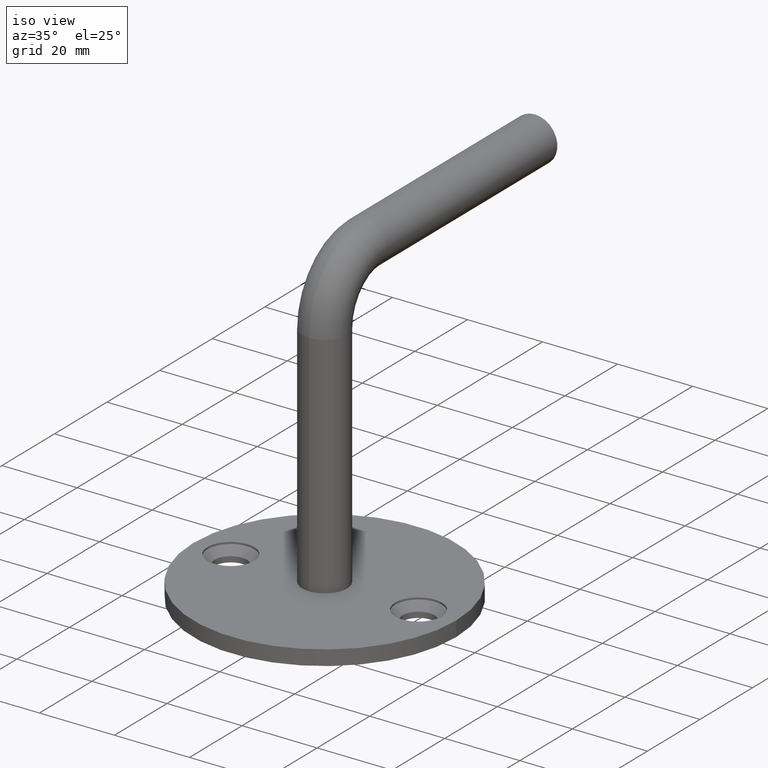
[diagram: clean part render]
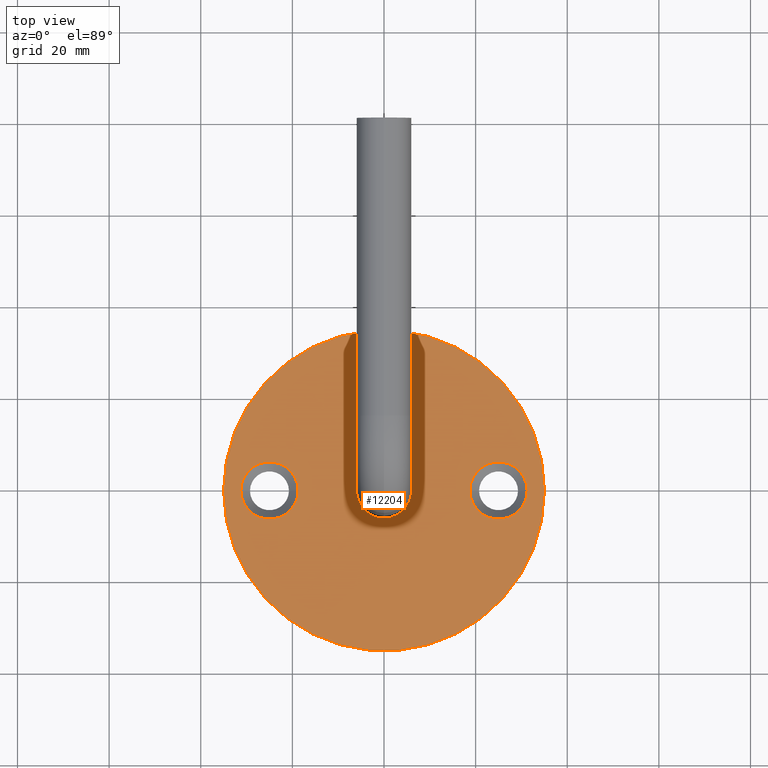
[diagram: tour spotlight — one face highlighted and labeled with its STEP entity id]
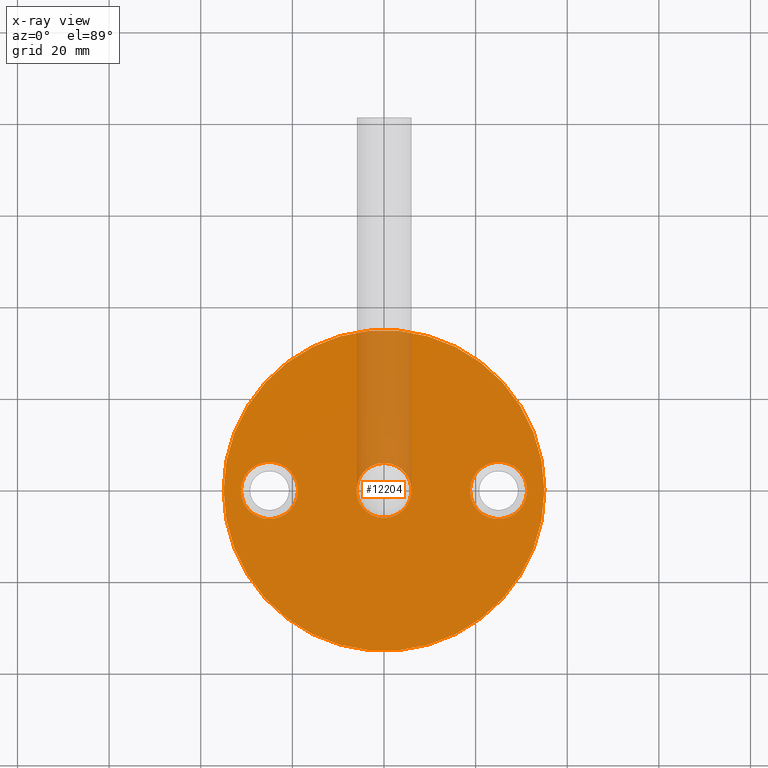
[diagram: x-ray of the same camera — body ghosted, this tour face saturated]
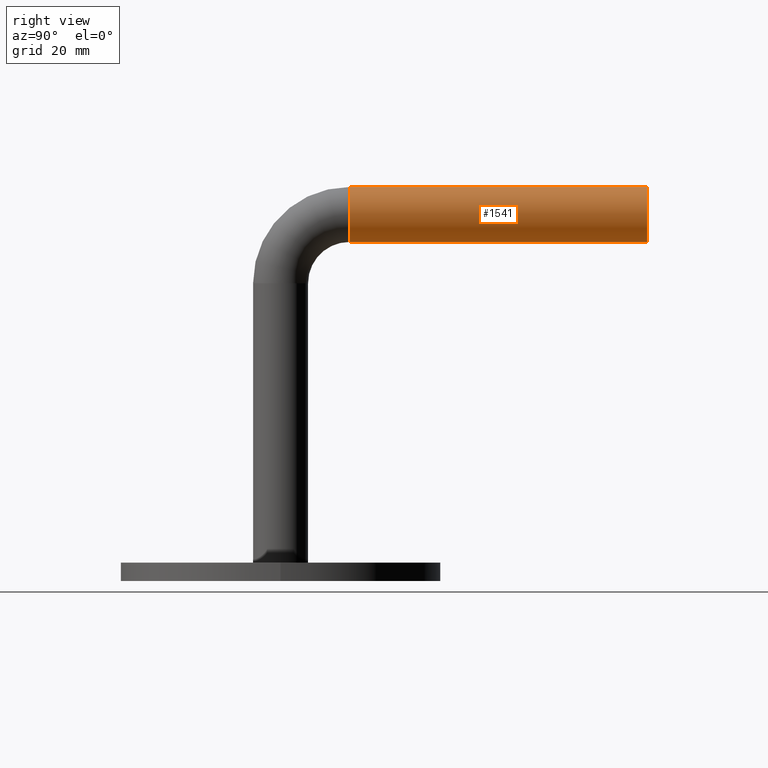
[diagram: tour spotlight — one face highlighted and labeled with its STEP entity id]
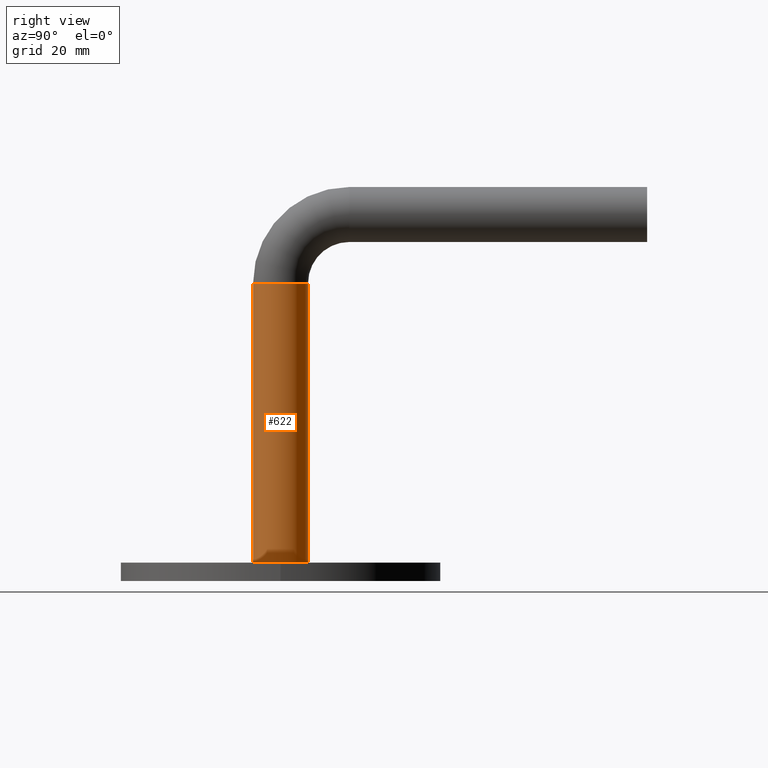
[diagram: tour spotlight — one face highlighted and labeled with its STEP entity id]
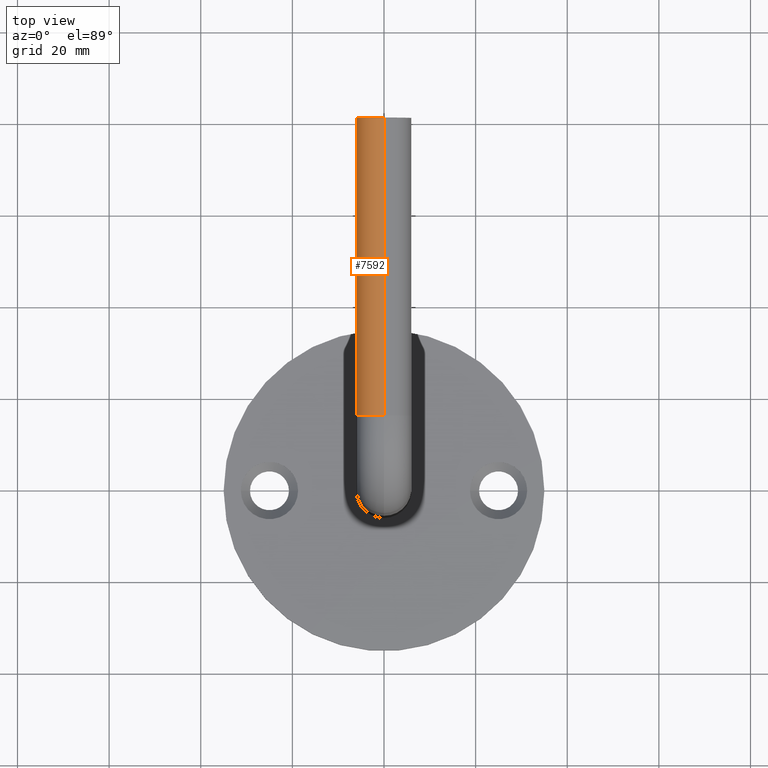
[diagram: tour spotlight — one face highlighted and labeled with its STEP entity id]
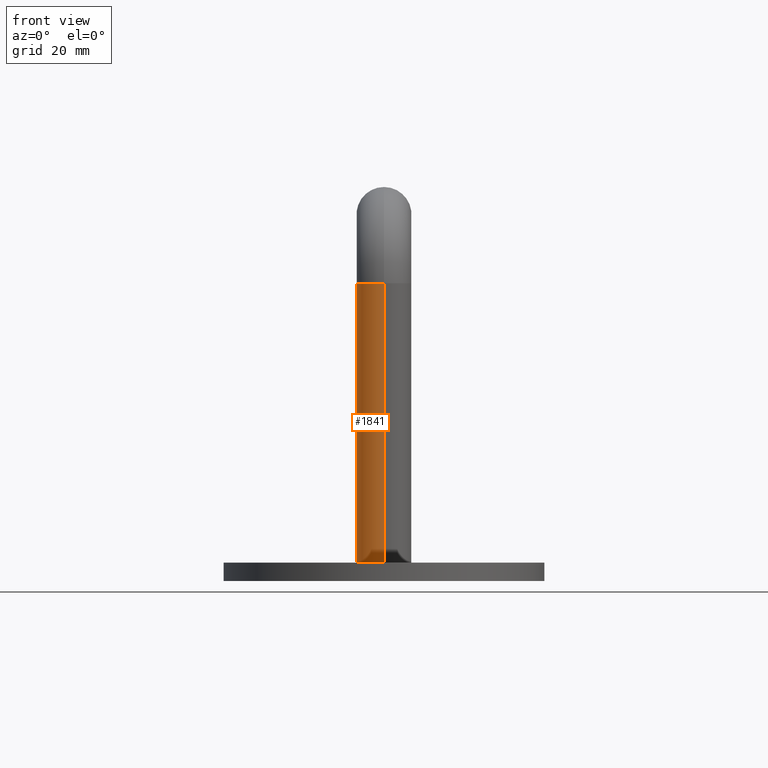
[diagram: tour spotlight — one face highlighted and labeled with its STEP entity id]
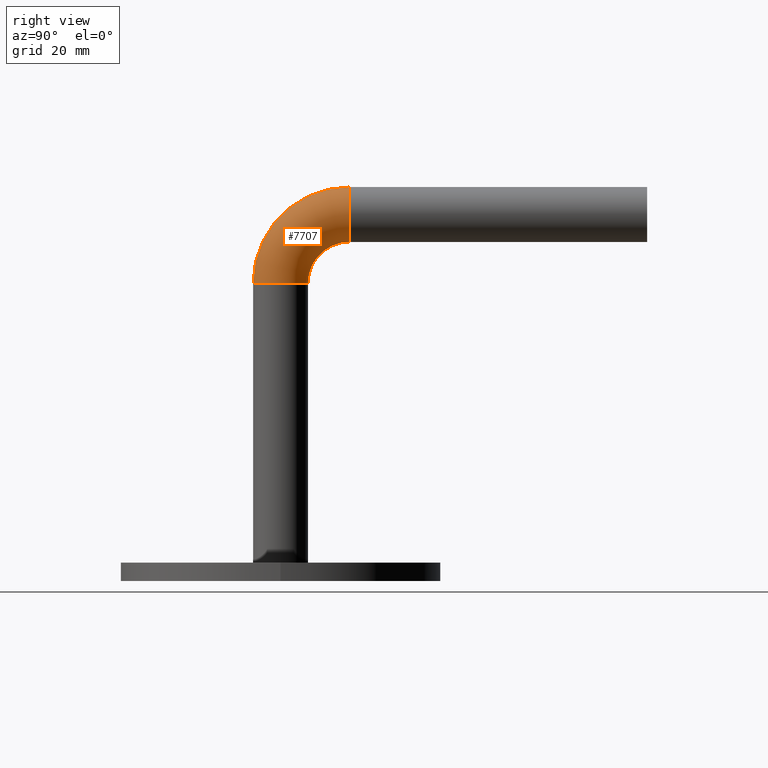
[diagram: tour spotlight — one face highlighted and labeled with its STEP entity id]
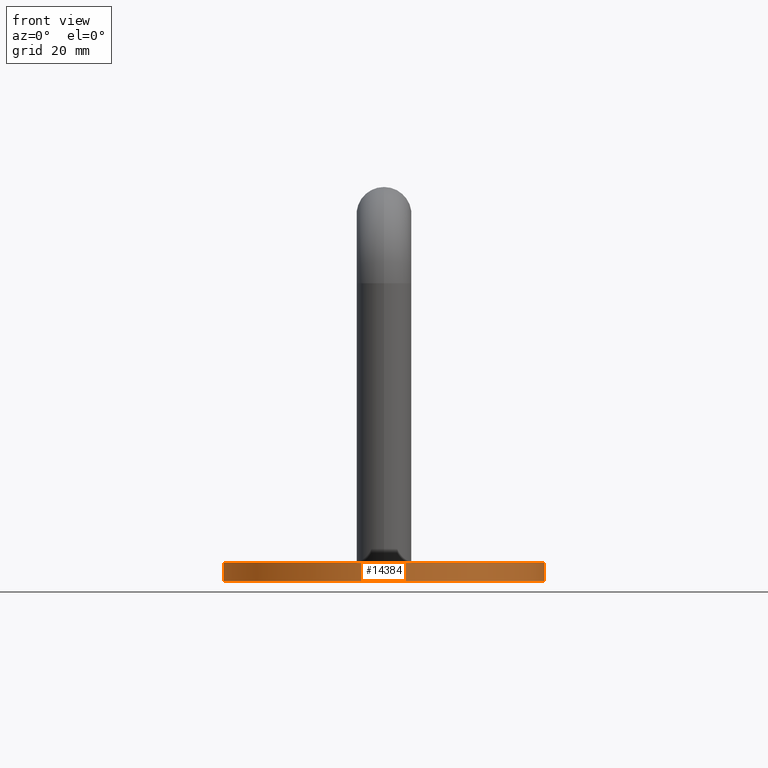
[diagram: tour spotlight — one face highlighted and labeled with its STEP entity id]
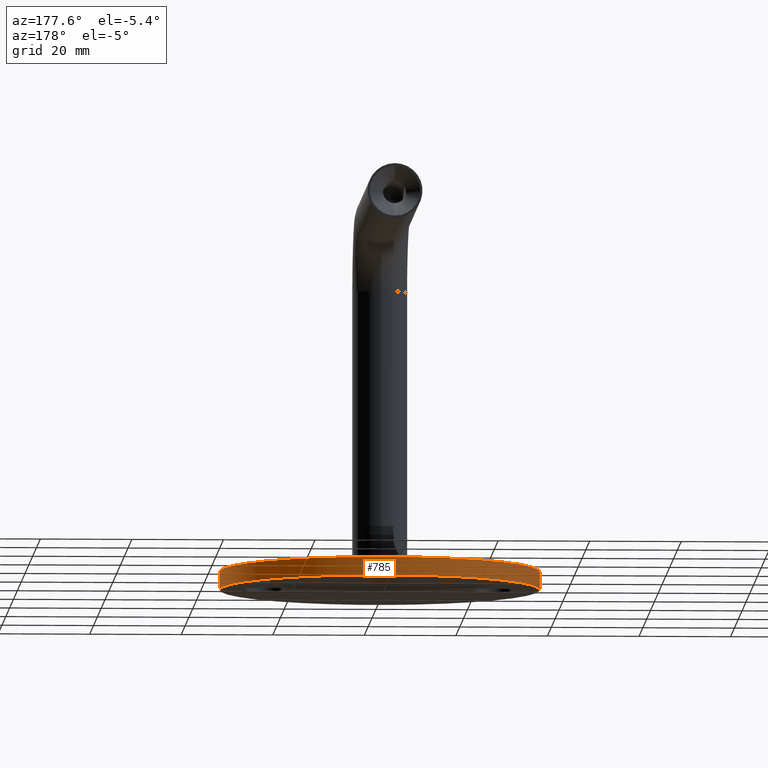
[diagram: tour spotlight — one face highlighted and labeled with its STEP entity id]
A machine part: a face-by-face anatomy tour. The part has 272 B-rep faces; the first image is the clean iso view, then the 8 largest visible faces are spotlighted one at a time (largest first), each with its STEP entity span.

Face 1 — top view, entity #12204. An x-ray twin of the same camera follows (body ghosted, this face saturated) — the face is partly hidden behind the body. In plain terms, the highlighted planar face has unit normal (0, 0, 1).
Definition (entity closure, byte-faithful):
#308 = ORIENTED_EDGE ( 'NONE', *, *, #5511, .F. ) ;
#593 = AXIS2_PLACEMENT_3D ( 'NONE', #8909, #4185, #6395 ) ;
#663 = CARTESIAN_POINT ( 'NONE',  ( 0.000000000000000000, 6.000000000000000888, 4.000000000000003553 ) ) ;
#805 = EDGE_CURVE ( 'NONE', #3242, #2036, #1899, .T. ) ;
#1052 = PLANE ( 'NONE',  #4792 ) ;
#1158 = EDGE_CURVE ( 'NONE', #10493, #4251, #6026, .T. ) ;
#1195 = DIRECTION ( 'NONE',  ( -0.000000000000000000, -0.000000000000000000, 1.000000000000000000 ) ) ;
#1443 = EDGE_CURVE ( 'NONE', #13871, #8262, #2603, .T. ) ;
#1590 = ORIENTED_EDGE ( 'NONE', *, *, #5876, .F. ) ;
#1899 = CIRCLE ( 'NONE', #13111, 6.249999999999998224 ) ;
#2036 = VERTEX_POINT ( 'NONE', #13214 ) ;
#2236 = CARTESIAN_POINT ( 'NONE',  ( 0.000000000000000000, 0.000000000000000000, 4.000000000000000000 ) ) ;
#2603 = CIRCLE ( 'NONE', #593, 35.00000000000000711 ) ;
#3023 = EDGE_CURVE ( 'NONE', #8262, #13871, #13613, .T. ) ;
#3242 = VERTEX_POINT ( 'NONE', #12181 ) ;
#3382 = DIRECTION ( 'NONE',  ( 1.000000000000000000, 0.000000000000000000, -0.000000000000000000 ) ) ;
#3751 = CARTESIAN_POINT ( 'NONE',  ( -35.00000000000000711, 0.000000000000000000, 4.000000000000000000 ) ) ;
#4004 = CARTESIAN_POINT ( 'NONE',  ( 25.00000000000000000, 6.123233995736766085E-15, 4.000000000000000000 ) ) ;
#4185 = DIRECTION ( 'NONE',  ( 0.000000000000000000, 0.000000000000000000, 1.000000000000000000 ) ) ;
#4251 = VERTEX_POINT ( 'NONE', #663 ) ;
#4496 = DIRECTION ( 'NONE',  ( 0.000000000000000000, 0.000000000000000000, 1.000000000000000000 ) ) ;
#4724 = CARTESIAN_POINT ( 'NONE',  ( 35.00000000000000711, 4.286263797015737285E-15, 4.000000000000000000 ) ) ;
#4792 = AXIS2_PLACEMENT_3D ( 'NONE', #2236, #10336, #3382 ) ;
#4857 = AXIS2_PLACEMENT_3D ( 'NONE', #10445, #9149, #14992 ) ;
#4886 = AXIS2_PLACEMENT_3D ( 'NONE', #4004, #9807, #6386 ) ;
#4945 = EDGE_CURVE ( 'NONE', #2036, #3242, #5057, .T. ) ;
#5049 = FACE_BOUND ( 'NONE', #7115, .T. ) ;
#5057 = CIRCLE ( 'NONE', #6907, 6.249999999999998224 ) ;
#5242 = DIRECTION ( 'NONE',  ( -0.000000000000000000, -0.000000000000000000, 1.000000000000000000 ) ) ;
#5319 = CARTESIAN_POINT ( 'NONE',  ( 0.000000000000000000, -4.898587196589417759E-16, 4.000000000000003553 ) ) ;
#5453 = AXIS2_PLACEMENT_3D ( 'NONE', #11682, #10509, #12783 ) ;
#5511 = EDGE_CURVE ( 'NONE', #4251, #10493, #13925, .T. ) ;
#5876 = EDGE_CURVE ( 'NONE', #6253, #13552, #11599, .T. ) ;
#6026 = CIRCLE ( 'NONE', #9933, 6.000000000000000888 ) ;
#6056 = CARTESIAN_POINT ( 'NONE',  ( 7.347880794884120722E-16, -6.000000000000001776, 4.000000000000003553 ) ) ;
#6065 = CARTESIAN_POINT ( 'NONE',  ( 31.25000000000000000, 6.123233995736766085E-15, 4.000000000000000000 ) ) ;
#6253 = VERTEX_POINT ( 'NONE', #6065 ) ;
#6386 = DIRECTION ( 'NONE',  ( 1.000000000000000000, 0.000000000000000000, 0.000000000000000000 ) ) ;
#6395 = DIRECTION ( 'NONE',  ( 1.000000000000000000, 0.000000000000000000, 0.000000000000000000 ) ) ;
#6818 = ORIENTED_EDGE ( 'NONE', *, *, #1158, .F. ) ;
#6846 = CARTESIAN_POINT ( 'NONE',  ( 18.75000000000000355, 6.888638245203861550E-15, 4.000000000000000000 ) ) ;
#6907 = AXIS2_PLACEMENT_3D ( 'NONE', #11834, #1195, #13941 ) ;
#6912 = CARTESIAN_POINT ( 'NONE',  ( 0.000000000000000000, -4.898587196589417759E-16, 4.000000000000003553 ) ) ;
#6943 = EDGE_LOOP ( 'NONE', ( #1590, #8010 ) ) ;
#7038 = FACE_BOUND ( 'NONE', #6943, .T. ) ;
#7115 = EDGE_LOOP ( 'NONE', ( #308, #6818 ) ) ;
#7708 = DIRECTION ( 'NONE',  ( 0.000000000000000000, 0.000000000000000000, 1.000000000000000000 ) ) ;
#8010 = ORIENTED_EDGE ( 'NONE', *, *, #9888, .F. ) ;
#8107 = EDGE_LOOP ( 'NONE', ( #8856, #8714 ) ) ;
#8262 = VERTEX_POINT ( 'NONE', #4724 ) ;
#8707 = DIRECTION ( 'NONE',  ( 1.000000000000000000, 0.000000000000000000, 0.000000000000000000 ) ) ;
#8714 = ORIENTED_EDGE ( 'NONE', *, *, #805, .F. ) ;
#8856 = ORIENTED_EDGE ( 'NONE', *, *, #4945, .F. ) ;
#8909 = CARTESIAN_POINT ( 'NONE',  ( 0.000000000000000000, 0.000000000000000000, 4.000000000000000000 ) ) ;
#8950 = ORIENTED_EDGE ( 'NONE', *, *, #3023, .T. ) ;
#9109 = CIRCLE ( 'NONE', #4886, 6.249999999999998224 ) ;
#9149 = DIRECTION ( 'NONE',  ( -0.000000000000000000, -0.000000000000000000, 1.000000000000000000 ) ) ;
#9328 = EDGE_LOOP ( 'NONE', ( #9691, #8950 ) ) ;
#9691 = ORIENTED_EDGE ( 'NONE', *, *, #1443, .T. ) ;
#9807 = DIRECTION ( 'NONE',  ( -0.000000000000000000, -0.000000000000000000, 1.000000000000000000 ) ) ;
#9888 = EDGE_CURVE ( 'NONE', #13552, #6253, #9109, .T. ) ;
#9933 = AXIS2_PLACEMENT_3D ( 'NONE', #6912, #4496, #10421 ) ;
#10336 = DIRECTION ( 'NONE',  ( 0.000000000000000000, 0.000000000000000000, 1.000000000000000000 ) ) ;
#10421 = DIRECTION ( 'NONE',  ( 1.000000000000000000, 0.000000000000000000, 0.000000000000000000 ) ) ;
#10445 = CARTESIAN_POINT ( 'NONE',  ( 25.00000000000000000, 6.123233995736766085E-15, 4.000000000000000000 ) ) ;
#10493 = VERTEX_POINT ( 'NONE', #6056 ) ;
#10509 = DIRECTION ( 'NONE',  ( 0.000000000000000000, 0.000000000000000000, 1.000000000000000000 ) ) ;
#11599 = CIRCLE ( 'NONE', #4857, 6.249999999999998224 ) ;
#11682 = CARTESIAN_POINT ( 'NONE',  ( 0.000000000000000000, 0.000000000000000000, 4.000000000000000000 ) ) ;
#11834 = CARTESIAN_POINT ( 'NONE',  ( -25.00000000000000000, 0.000000000000000000, 4.000000000000000000 ) ) ;
#12181 = CARTESIAN_POINT ( 'NONE',  ( -31.25000000000000000, 7.654042494670955634E-16, 4.000000000000000000 ) ) ;
#12204 = ADVANCED_FACE ( 'NONE', ( #14686, #7038, #5049, #12694 ), #1052, .T. ) ;
#12694 = FACE_OUTER_BOUND ( 'NONE', #9328, .T. ) ;
#12783 = DIRECTION ( 'NONE',  ( 1.000000000000000000, 0.000000000000000000, 0.000000000000000000 ) ) ;
#13111 = AXIS2_PLACEMENT_3D ( 'NONE', #13310, #5242, #8707 ) ;
#13214 = CARTESIAN_POINT ( 'NONE',  ( -18.75000000000000355, 0.000000000000000000, 4.000000000000000000 ) ) ;
#13310 = CARTESIAN_POINT ( 'NONE',  ( -25.00000000000000000, 0.000000000000000000, 4.000000000000000000 ) ) ;
#13552 = VERTEX_POINT ( 'NONE', #6846 ) ;
#13613 = CIRCLE ( 'NONE', #5453, 35.00000000000000711 ) ;
#13871 = VERTEX_POINT ( 'NONE', #3751 ) ;
#13925 = CIRCLE ( 'NONE', #14963, 6.000000000000000888 ) ;
#13941 = DIRECTION ( 'NONE',  ( 1.000000000000000000, 0.000000000000000000, 0.000000000000000000 ) ) ;
#14686 = FACE_BOUND ( 'NONE', #8107, .T. ) ;
#14711 = DIRECTION ( 'NONE',  ( 1.000000000000000000, 0.000000000000000000, 0.000000000000000000 ) ) ;
#14963 = AXIS2_PLACEMENT_3D ( 'NONE', #5319, #7708, #14711 ) ;
#14992 = DIRECTION ( 'NONE',  ( 1.000000000000000000, 0.000000000000000000, 0.000000000000000000 ) ) ;

Face 2 — right view, entity #1541. In plain terms, the highlighted cylindrical surface (edge-blend (fillet) strip) has radius 6 mm, axis along (0, 1, 0).
Definition (entity closure, byte-faithful):
#104 = EDGE_LOOP ( 'NONE', ( #14194, #3378, #6154, #1226 ) ) ;
#223 = DIRECTION ( 'NONE',  ( 0.000000000000000000, -1.000000000000000000, 1.437166698016966745E-14 ) ) ;
#520 = DIRECTION ( 'NONE',  ( 0.000000000000000000, -1.000000000000000000, 1.437166698016966745E-14 ) ) ;
#558 = CARTESIAN_POINT ( 'NONE',  ( 0.000000000000000000, 15.00000000000009592, 86.00000000000000000 ) ) ;
#798 = DIRECTION ( 'NONE',  ( 0.000000000000000000, 1.000000000000000000, 0.000000000000000000 ) ) ;
#1226 = ORIENTED_EDGE ( 'NONE', *, *, #3571, .F. ) ;
#1433 = LINE ( 'NONE', #6563, #7012 ) ;
#1453 = CARTESIAN_POINT ( 'NONE',  ( 0.000000000000000000, 79.99999999999998579, 80.00000000000000000 ) ) ;
#1541 = ADVANCED_FACE ( 'NONE', ( #11115 ), #3664, .T. ) ;
#2207 = AXIS2_PLACEMENT_3D ( 'NONE', #1453, #520, #10711 ) ;
#2783 = CARTESIAN_POINT ( 'NONE',  ( 0.000000000000000000, 15.00000000000018296, 86.00000000000000000 ) ) ;
#3221 = CARTESIAN_POINT ( 'NONE',  ( 0.000000000000000000, 15.00000000000009592, 80.00000000000000000 ) ) ;
#3378 = ORIENTED_EDGE ( 'NONE', *, *, #6698, .T. ) ;
#3571 = EDGE_CURVE ( 'NONE', #7851, #10991, #8158, .T. ) ;
#3664 = CYLINDRICAL_SURFACE ( 'NONE', #12816, 6.000000000000005329 ) ;
#4935 = EDGE_CURVE ( 'NONE', #14017, #7851, #14303, .T. ) ;
#5313 = DIRECTION ( 'NONE',  ( 0.000000000000000000, 1.000000000000000000, 0.000000000000000000 ) ) ;
#5877 = CARTESIAN_POINT ( 'NONE',  ( 0.000000000000000000, 15.00000000000009592, 80.00000000000000000 ) ) ;
#6045 = DIRECTION ( 'NONE',  ( -1.000000000000000000, 0.000000000000000000, 0.000000000000000000 ) ) ;
#6154 = ORIENTED_EDGE ( 'NONE', *, *, #11464, .T. ) ;
#6563 = CARTESIAN_POINT ( 'NONE',  ( 7.347880794884120722E-16, 15.00000000000009592, 74.00000000000000000 ) ) ;
#6698 = EDGE_CURVE ( 'NONE', #14017, #12232, #1433, .T. ) ;
#7012 = VECTOR ( 'NONE', #798, 1000.000000000000000 ) ;
#7802 = VECTOR ( 'NONE', #5313, 1000.000000000000000 ) ;
#7851 = VERTEX_POINT ( 'NONE', #2783 ) ;
#7862 = DIRECTION ( 'NONE',  ( 0.000000000000000000, 1.000000000000000000, 0.000000000000000000 ) ) ;
#8148 = CIRCLE ( 'NONE', #2207, 6.000000000000000888 ) ;
#8158 = LINE ( 'NONE', #558, #7802 ) ;
#8344 = CARTESIAN_POINT ( 'NONE',  ( 7.347880794884114806E-16, 79.99999999999990052, 74.00000000000000000 ) ) ;
#10106 = CARTESIAN_POINT ( 'NONE',  ( 0.000000000000000000, 80.00000000000007105, 86.00000000000000000 ) ) ;
#10711 = DIRECTION ( 'NONE',  ( -1.000000000000000000, 0.000000000000000000, 0.000000000000000000 ) ) ;
#10991 = VERTEX_POINT ( 'NONE', #10106 ) ;
#11115 = FACE_OUTER_BOUND ( 'NONE', #104, .T. ) ;
#11464 = EDGE_CURVE ( 'NONE', #12232, #10991, #8148, .T. ) ;
#12177 = CARTESIAN_POINT ( 'NONE',  ( 7.347880794884114806E-16, 15.00000000000001066, 74.00000000000000000 ) ) ;
#12232 = VERTEX_POINT ( 'NONE', #8344 ) ;
#12632 = DIRECTION ( 'NONE',  ( 0.000000000000000000, 0.000000000000000000, 1.000000000000000000 ) ) ;
#12816 = AXIS2_PLACEMENT_3D ( 'NONE', #3221, #7862, #12632 ) ;
#13894 = AXIS2_PLACEMENT_3D ( 'NONE', #5877, #223, #6045 ) ;
#14017 = VERTEX_POINT ( 'NONE', #12177 ) ;
#14194 = ORIENTED_EDGE ( 'NONE', *, *, #4935, .F. ) ;
#14303 = CIRCLE ( 'NONE', #13894, 6.000000000000000888 ) ;

Face 3 — right view, entity #622. In plain terms, the highlighted cylindrical surface (edge-blend (fillet) strip) has radius 6 mm, axis along (-0, 0, -1).
Definition (entity closure, byte-faithful):
#200 = CARTESIAN_POINT ( 'NONE',  ( 0.000000000000000000, -7.960204194457784630E-15, 64.99999999999988631 ) ) ;
#474 = DIRECTION ( 'NONE',  ( -1.000000000000000000, 0.000000000000000000, 0.000000000000000000 ) ) ;
#622 = ADVANCED_FACE ( 'NONE', ( #6587 ), #12400, .T. ) ;
#663 = CARTESIAN_POINT ( 'NONE',  ( 0.000000000000000000, 6.000000000000000888, 4.000000000000003553 ) ) ;
#1158 = EDGE_CURVE ( 'NONE', #10493, #4251, #6026, .T. ) ;
#1171 = DIRECTION ( 'NONE',  ( 0.000000000000000000, 1.000000000000000000, 0.000000000000000000 ) ) ;
#2108 = DIRECTION ( 'NONE',  ( -0.000000000000000000, 1.224646799147353454E-16, -1.000000000000000000 ) ) ;
#2172 = EDGE_LOOP ( 'NONE', ( #7185, #6957, #8066, #5645 ) ) ;
#4251 = VERTEX_POINT ( 'NONE', #663 ) ;
#4496 = DIRECTION ( 'NONE',  ( 0.000000000000000000, 0.000000000000000000, 1.000000000000000000 ) ) ;
#4551 = EDGE_CURVE ( 'NONE', #12459, #14761, #13780, .T. ) ;
#5598 = LINE ( 'NONE', #12488, #14471 ) ;
#5645 = ORIENTED_EDGE ( 'NONE', *, *, #13091, .F. ) ;
#5663 = CARTESIAN_POINT ( 'NONE',  ( 7.347880794884120722E-16, -6.000000000000008882, 64.99999999999988631 ) ) ;
#6026 = CIRCLE ( 'NONE', #9933, 6.000000000000000888 ) ;
#6056 = CARTESIAN_POINT ( 'NONE',  ( 7.347880794884120722E-16, -6.000000000000001776, 4.000000000000003553 ) ) ;
#6358 = CARTESIAN_POINT ( 'NONE',  ( 0.000000000000000000, 5.999999999999992895, 64.99999999999988631 ) ) ;
#6587 = FACE_OUTER_BOUND ( 'NONE', #2172, .T. ) ;
#6611 = AXIS2_PLACEMENT_3D ( 'NONE', #200, #8239, #1171 ) ;
#6825 = DIRECTION ( 'NONE',  ( -0.000000000000000000, 1.224646799147353454E-16, -1.000000000000000000 ) ) ;
#6912 = CARTESIAN_POINT ( 'NONE',  ( 0.000000000000000000, -4.898587196589417759E-16, 4.000000000000003553 ) ) ;
#6957 = ORIENTED_EDGE ( 'NONE', *, *, #14165, .T. ) ;
#7185 = ORIENTED_EDGE ( 'NONE', *, *, #4551, .T. ) ;
#8066 = ORIENTED_EDGE ( 'NONE', *, *, #1158, .T. ) ;
#8239 = DIRECTION ( 'NONE',  ( -0.000000000000000000, 1.224646799147353454E-16, -1.000000000000000000 ) ) ;
#8694 = LINE ( 'NONE', #5663, #9220 ) ;
#9220 = VECTOR ( 'NONE', #6825, 1000.000000000000000 ) ;
#9933 = AXIS2_PLACEMENT_3D ( 'NONE', #6912, #4496, #10421 ) ;
#10421 = DIRECTION ( 'NONE',  ( 1.000000000000000000, 0.000000000000000000, 0.000000000000000000 ) ) ;
#10493 = VERTEX_POINT ( 'NONE', #6056 ) ;
#12400 = CYLINDRICAL_SURFACE ( 'NONE', #6611, 6.000000000000000888 ) ;
#12459 = VERTEX_POINT ( 'NONE', #6358 ) ;
#12488 = CARTESIAN_POINT ( 'NONE',  ( 0.000000000000000000, 5.999999999999992895, 64.99999999999988631 ) ) ;
#12633 = CARTESIAN_POINT ( 'NONE',  ( 7.347880794884124666E-16, -6.000000000000009770, 64.99999999999988631 ) ) ;
#12645 = AXIS2_PLACEMENT_3D ( 'NONE', #13249, #14396, #474 ) ;
#13091 = EDGE_CURVE ( 'NONE', #12459, #4251, #5598, .T. ) ;
#13249 = CARTESIAN_POINT ( 'NONE',  ( 0.000000000000000000, -7.960204194457784630E-15, 64.99999999999988631 ) ) ;
#13780 = CIRCLE ( 'NONE', #12645, 6.000000000000000888 ) ;
#14165 = EDGE_CURVE ( 'NONE', #14761, #10493, #8694, .T. ) ;
#14396 = DIRECTION ( 'NONE',  ( 0.000000000000000000, 0.000000000000000000, -1.000000000000000000 ) ) ;
#14471 = VECTOR ( 'NONE', #2108, 1000.000000000000000 ) ;
#14761 = VERTEX_POINT ( 'NONE', #12633 ) ;

Face 4 — top view, entity #7592. In plain terms, the highlighted cylindrical surface (edge-blend (fillet) strip) has radius 6 mm, axis along (0, 1, 0).
Definition (entity closure, byte-faithful):
#558 = CARTESIAN_POINT ( 'NONE',  ( 0.000000000000000000, 15.00000000000009592, 86.00000000000000000 ) ) ;
#762 = CARTESIAN_POINT ( 'NONE',  ( 0.000000000000000000, 15.00000000000009592, 80.00000000000000000 ) ) ;
#798 = DIRECTION ( 'NONE',  ( 0.000000000000000000, 1.000000000000000000, 0.000000000000000000 ) ) ;
#1433 = LINE ( 'NONE', #6563, #7012 ) ;
#2237 = CARTESIAN_POINT ( 'NONE',  ( 0.000000000000000000, 15.00000000000009592, 80.00000000000000000 ) ) ;
#2783 = CARTESIAN_POINT ( 'NONE',  ( 0.000000000000000000, 15.00000000000018296, 86.00000000000000000 ) ) ;
#2864 = DIRECTION ( 'NONE',  ( -1.000000000000000000, 0.000000000000000000, 0.000000000000000000 ) ) ;
#3342 = DIRECTION ( 'NONE',  ( 0.000000000000000000, 1.000000000000000000, 0.000000000000000000 ) ) ;
#3571 = EDGE_CURVE ( 'NONE', #7851, #10991, #8158, .T. ) ;
#4143 = DIRECTION ( 'NONE',  ( 0.000000000000000000, -1.000000000000000000, 1.437166698016966745E-14 ) ) ;
#4972 = AXIS2_PLACEMENT_3D ( 'NONE', #762, #4143, #12258 ) ;
#5313 = DIRECTION ( 'NONE',  ( 0.000000000000000000, 1.000000000000000000, 0.000000000000000000 ) ) ;
#6344 = CARTESIAN_POINT ( 'NONE',  ( 0.000000000000000000, 79.99999999999998579, 80.00000000000000000 ) ) ;
#6353 = AXIS2_PLACEMENT_3D ( 'NONE', #6344, #13288, #2864 ) ;
#6380 = EDGE_CURVE ( 'NONE', #7851, #14017, #10672, .T. ) ;
#6563 = CARTESIAN_POINT ( 'NONE',  ( 7.347880794884120722E-16, 15.00000000000009592, 74.00000000000000000 ) ) ;
#6698 = EDGE_CURVE ( 'NONE', #14017, #12232, #1433, .T. ) ;
#7008 = FACE_OUTER_BOUND ( 'NONE', #11177, .T. ) ;
#7012 = VECTOR ( 'NONE', #798, 1000.000000000000000 ) ;
#7403 = ORIENTED_EDGE ( 'NONE', *, *, #3571, .T. ) ;
#7592 = ADVANCED_FACE ( 'NONE', ( #7008 ), #9223, .T. ) ;
#7802 = VECTOR ( 'NONE', #5313, 1000.000000000000000 ) ;
#7851 = VERTEX_POINT ( 'NONE', #2783 ) ;
#7980 = ORIENTED_EDGE ( 'NONE', *, *, #6698, .F. ) ;
#8158 = LINE ( 'NONE', #558, #7802 ) ;
#8344 = CARTESIAN_POINT ( 'NONE',  ( 7.347880794884114806E-16, 79.99999999999990052, 74.00000000000000000 ) ) ;
#9223 = CYLINDRICAL_SURFACE ( 'NONE', #10715, 6.000000000000005329 ) ;
#10106 = CARTESIAN_POINT ( 'NONE',  ( 0.000000000000000000, 80.00000000000007105, 86.00000000000000000 ) ) ;
#10672 = CIRCLE ( 'NONE', #4972, 6.000000000000000888 ) ;
#10715 = AXIS2_PLACEMENT_3D ( 'NONE', #2237, #3342, #13770 ) ;
#10798 = ORIENTED_EDGE ( 'NONE', *, *, #11465, .T. ) ;
#10936 = ORIENTED_EDGE ( 'NONE', *, *, #6380, .F. ) ;
#10991 = VERTEX_POINT ( 'NONE', #10106 ) ;
#11177 = EDGE_LOOP ( 'NONE', ( #7980, #10936, #7403, #10798 ) ) ;
#11465 = EDGE_CURVE ( 'NONE', #10991, #12232, #14699, .T. ) ;
#12177 = CARTESIAN_POINT ( 'NONE',  ( 7.347880794884114806E-16, 15.00000000000001066, 74.00000000000000000 ) ) ;
#12232 = VERTEX_POINT ( 'NONE', #8344 ) ;
#12258 = DIRECTION ( 'NONE',  ( -1.000000000000000000, 0.000000000000000000, 0.000000000000000000 ) ) ;
#13288 = DIRECTION ( 'NONE',  ( 0.000000000000000000, -1.000000000000000000, 1.437166698016966745E-14 ) ) ;
#13770 = DIRECTION ( 'NONE',  ( 0.000000000000000000, 0.000000000000000000, 1.000000000000000000 ) ) ;
#14017 = VERTEX_POINT ( 'NONE', #12177 ) ;
#14699 = CIRCLE ( 'NONE', #6353, 6.000000000000000888 ) ;

Face 5 — front view, entity #1841. In plain terms, the highlighted cylindrical surface (edge-blend (fillet) strip) has radius 6 mm, axis along (-0, 0, -1).
Definition (entity closure, byte-faithful):
#663 = CARTESIAN_POINT ( 'NONE',  ( 0.000000000000000000, 6.000000000000000888, 4.000000000000003553 ) ) ;
#742 = AXIS2_PLACEMENT_3D ( 'NONE', #5887, #5843, #10331 ) ;
#1010 = DIRECTION ( 'NONE',  ( -0.000000000000000000, 1.224646799147353454E-16, -1.000000000000000000 ) ) ;
#1841 = ADVANCED_FACE ( 'NONE', ( #11826 ), #14896, .T. ) ;
#2108 = DIRECTION ( 'NONE',  ( -0.000000000000000000, 1.224646799147353454E-16, -1.000000000000000000 ) ) ;
#2281 = CARTESIAN_POINT ( 'NONE',  ( 0.000000000000000000, -7.960204194457784630E-15, 64.99999999999988631 ) ) ;
#4251 = VERTEX_POINT ( 'NONE', #663 ) ;
#4821 = ORIENTED_EDGE ( 'NONE', *, *, #14165, .F. ) ;
#4866 = ORIENTED_EDGE ( 'NONE', *, *, #10385, .T. ) ;
#5319 = CARTESIAN_POINT ( 'NONE',  ( 0.000000000000000000, -4.898587196589417759E-16, 4.000000000000003553 ) ) ;
#5511 = EDGE_CURVE ( 'NONE', #4251, #10493, #13925, .T. ) ;
#5598 = LINE ( 'NONE', #12488, #14471 ) ;
#5663 = CARTESIAN_POINT ( 'NONE',  ( 7.347880794884120722E-16, -6.000000000000008882, 64.99999999999988631 ) ) ;
#5843 = DIRECTION ( 'NONE',  ( 0.000000000000000000, 0.000000000000000000, -1.000000000000000000 ) ) ;
#5887 = CARTESIAN_POINT ( 'NONE',  ( 0.000000000000000000, -7.960204194457784630E-15, 64.99999999999988631 ) ) ;
#6056 = CARTESIAN_POINT ( 'NONE',  ( 7.347880794884120722E-16, -6.000000000000001776, 4.000000000000003553 ) ) ;
#6358 = CARTESIAN_POINT ( 'NONE',  ( 0.000000000000000000, 5.999999999999992895, 64.99999999999988631 ) ) ;
#6825 = DIRECTION ( 'NONE',  ( -0.000000000000000000, 1.224646799147353454E-16, -1.000000000000000000 ) ) ;
#7708 = DIRECTION ( 'NONE',  ( 0.000000000000000000, 0.000000000000000000, 1.000000000000000000 ) ) ;
#8436 = ORIENTED_EDGE ( 'NONE', *, *, #13091, .T. ) ;
#8694 = LINE ( 'NONE', #5663, #9220 ) ;
#9220 = VECTOR ( 'NONE', #6825, 1000.000000000000000 ) ;
#9845 = AXIS2_PLACEMENT_3D ( 'NONE', #2281, #1010, #11318 ) ;
#10331 = DIRECTION ( 'NONE',  ( -1.000000000000000000, 0.000000000000000000, 0.000000000000000000 ) ) ;
#10385 = EDGE_CURVE ( 'NONE', #14761, #12459, #13785, .T. ) ;
#10493 = VERTEX_POINT ( 'NONE', #6056 ) ;
#10863 = EDGE_LOOP ( 'NONE', ( #4821, #4866, #8436, #14970 ) ) ;
#11318 = DIRECTION ( 'NONE',  ( 0.000000000000000000, 1.000000000000000000, 0.000000000000000000 ) ) ;
#11826 = FACE_OUTER_BOUND ( 'NONE', #10863, .T. ) ;
#12459 = VERTEX_POINT ( 'NONE', #6358 ) ;
#12488 = CARTESIAN_POINT ( 'NONE',  ( 0.000000000000000000, 5.999999999999992895, 64.99999999999988631 ) ) ;
#12633 = CARTESIAN_POINT ( 'NONE',  ( 7.347880794884124666E-16, -6.000000000000009770, 64.99999999999988631 ) ) ;
#13091 = EDGE_CURVE ( 'NONE', #12459, #4251, #5598, .T. ) ;
#13785 = CIRCLE ( 'NONE', #742, 6.000000000000000888 ) ;
#13925 = CIRCLE ( 'NONE', #14963, 6.000000000000000888 ) ;
#14165 = EDGE_CURVE ( 'NONE', #14761, #10493, #8694, .T. ) ;
#14471 = VECTOR ( 'NONE', #2108, 1000.000000000000000 ) ;
#14711 = DIRECTION ( 'NONE',  ( 1.000000000000000000, 0.000000000000000000, 0.000000000000000000 ) ) ;
#14761 = VERTEX_POINT ( 'NONE', #12633 ) ;
#14896 = CYLINDRICAL_SURFACE ( 'NONE', #9845, 6.000000000000000888 ) ;
#14963 = AXIS2_PLACEMENT_3D ( 'NONE', #5319, #7708, #14711 ) ;
#14970 = ORIENTED_EDGE ( 'NONE', *, *, #5511, .T. ) ;

Face 6 — right view, entity #7707. In plain terms, the highlighted toroidal blend (fillet) surface has major radius 15 mm and minor (blend) radius 6 mm.
Definition (entity closure, byte-faithful):
#223 = DIRECTION ( 'NONE',  ( 0.000000000000000000, -1.000000000000000000, 1.437166698016966745E-14 ) ) ;
#474 = DIRECTION ( 'NONE',  ( -1.000000000000000000, 0.000000000000000000, 0.000000000000000000 ) ) ;
#844 = EDGE_LOOP ( 'NONE', ( #12158, #10795, #873, #7042 ) ) ;
#873 = ORIENTED_EDGE ( 'NONE', *, *, #2308, .T. ) ;
#1108 = AXIS2_PLACEMENT_3D ( 'NONE', #10621, #12953, #7217 ) ;
#1756 = AXIS2_PLACEMENT_3D ( 'NONE', #14690, #8926, #12567 ) ;
#2261 = DIRECTION ( 'NONE',  ( 0.000000000000000000, 0.000000000000000000, 1.000000000000000000 ) ) ;
#2308 = EDGE_CURVE ( 'NONE', #12459, #14017, #12892, .T. ) ;
#2783 = CARTESIAN_POINT ( 'NONE',  ( 0.000000000000000000, 15.00000000000018296, 86.00000000000000000 ) ) ;
#4551 = EDGE_CURVE ( 'NONE', #12459, #14761, #13780, .T. ) ;
#4935 = EDGE_CURVE ( 'NONE', #14017, #7851, #14303, .T. ) ;
#5765 = CIRCLE ( 'NONE', #1756, 21.00000000000000355 ) ;
#5877 = CARTESIAN_POINT ( 'NONE',  ( 0.000000000000000000, 15.00000000000009592, 80.00000000000000000 ) ) ;
#6045 = DIRECTION ( 'NONE',  ( -1.000000000000000000, 0.000000000000000000, 0.000000000000000000 ) ) ;
#6358 = CARTESIAN_POINT ( 'NONE',  ( 0.000000000000000000, 5.999999999999992895, 64.99999999999988631 ) ) ;
#6492 = FACE_OUTER_BOUND ( 'NONE', #844, .T. ) ;
#7042 = ORIENTED_EDGE ( 'NONE', *, *, #4935, .T. ) ;
#7217 = DIRECTION ( 'NONE',  ( 0.000000000000000000, 0.000000000000000000, 1.000000000000000000 ) ) ;
#7707 = ADVANCED_FACE ( 'NONE', ( #6492 ), #13908, .T. ) ;
#7851 = VERTEX_POINT ( 'NONE', #2783 ) ;
#8926 = DIRECTION ( 'NONE',  ( -1.000000000000000000, -0.000000000000000000, 0.000000000000000000 ) ) ;
#10621 = CARTESIAN_POINT ( 'NONE',  ( 0.000000000000000000, 14.99999999999999112, 65.00000000000000000 ) ) ;
#10795 = ORIENTED_EDGE ( 'NONE', *, *, #4551, .F. ) ;
#11676 = DIRECTION ( 'NONE',  ( -1.000000000000000000, -0.000000000000000000, 0.000000000000000000 ) ) ;
#11723 = CARTESIAN_POINT ( 'NONE',  ( 7.347880794884120722E-16, 14.99999999999999112, 65.00000000000000000 ) ) ;
#11962 = AXIS2_PLACEMENT_3D ( 'NONE', #11723, #11676, #2261 ) ;
#12158 = ORIENTED_EDGE ( 'NONE', *, *, #14330, .F. ) ;
#12177 = CARTESIAN_POINT ( 'NONE',  ( 7.347880794884114806E-16, 15.00000000000001066, 74.00000000000000000 ) ) ;
#12459 = VERTEX_POINT ( 'NONE', #6358 ) ;
#12567 = DIRECTION ( 'NONE',  ( 0.000000000000000000, 0.000000000000000000, 1.000000000000000000 ) ) ;
#12633 = CARTESIAN_POINT ( 'NONE',  ( 7.347880794884124666E-16, -6.000000000000009770, 64.99999999999988631 ) ) ;
#12645 = AXIS2_PLACEMENT_3D ( 'NONE', #13249, #14396, #474 ) ;
#12892 = CIRCLE ( 'NONE', #11962, 8.999999999999994671 ) ;
#12953 = DIRECTION ( 'NONE',  ( -1.000000000000000000, -0.000000000000000000, 0.000000000000000000 ) ) ;
#13249 = CARTESIAN_POINT ( 'NONE',  ( 0.000000000000000000, -7.960204194457784630E-15, 64.99999999999988631 ) ) ;
#13780 = CIRCLE ( 'NONE', #12645, 6.000000000000000888 ) ;
#13894 = AXIS2_PLACEMENT_3D ( 'NONE', #5877, #223, #6045 ) ;
#13908 = TOROIDAL_SURFACE ( 'NONE', #1108, 15.00000000000000000, 6.000000000000000888 ) ;
#14017 = VERTEX_POINT ( 'NONE', #12177 ) ;
#14303 = CIRCLE ( 'NONE', #13894, 6.000000000000000888 ) ;
#14330 = EDGE_CURVE ( 'NONE', #14761, #7851, #5765, .T. ) ;
#14396 = DIRECTION ( 'NONE',  ( 0.000000000000000000, 0.000000000000000000, -1.000000000000000000 ) ) ;
#14690 = CARTESIAN_POINT ( 'NONE',  ( 0.000000000000000000, 14.99999999999999112, 65.00000000000000000 ) ) ;
#14761 = VERTEX_POINT ( 'NONE', #12633 ) ;

Face 7 — front view, entity #14384. In plain terms, the highlighted cylindrical surface (partial cylindrical patch) has radius 35 mm, axis along (-0, -0, -1).
Definition (entity closure, byte-faithful):
#418 = CARTESIAN_POINT ( 'NONE',  ( 35.00000000000000711, 4.286263797015737285E-15, 4.000000000000000000 ) ) ;
#593 = AXIS2_PLACEMENT_3D ( 'NONE', #8909, #4185, #6395 ) ;
#912 = DIRECTION ( 'NONE',  ( 0.000000000000000000, 0.000000000000000000, 1.000000000000000000 ) ) ;
#1203 = CARTESIAN_POINT ( 'NONE',  ( 0.000000000000000000, 0.000000000000000000, 4.000000000000000000 ) ) ;
#1261 = EDGE_CURVE ( 'NONE', #13871, #13994, #6197, .T. ) ;
#1443 = EDGE_CURVE ( 'NONE', #13871, #8262, #2603, .T. ) ;
#1544 = ORIENTED_EDGE ( 'NONE', *, *, #6604, .F. ) ;
#1654 = CARTESIAN_POINT ( 'NONE',  ( 35.00000000000000711, 4.286263797015737285E-15, 0.000000000000000000 ) ) ;
#2315 = DIRECTION ( 'NONE',  ( -1.000000000000000000, 0.000000000000000000, 0.000000000000000000 ) ) ;
#2538 = CYLINDRICAL_SURFACE ( 'NONE', #13031, 35.00000000000000711 ) ;
#2603 = CIRCLE ( 'NONE', #593, 35.00000000000000711 ) ;
#2808 = CARTESIAN_POINT ( 'NONE',  ( -35.00000000000000711, 0.000000000000000000, 0.000000000000000000 ) ) ;
#2969 = VECTOR ( 'NONE', #8219, 1000.000000000000000 ) ;
#3678 = CARTESIAN_POINT ( 'NONE',  ( -35.00000000000000711, 0.000000000000000000, 4.000000000000000000 ) ) ;
#3751 = CARTESIAN_POINT ( 'NONE',  ( -35.00000000000000711, 0.000000000000000000, 4.000000000000000000 ) ) ;
#4185 = DIRECTION ( 'NONE',  ( 0.000000000000000000, 0.000000000000000000, 1.000000000000000000 ) ) ;
#4724 = CARTESIAN_POINT ( 'NONE',  ( 35.00000000000000711, 4.286263797015737285E-15, 4.000000000000000000 ) ) ;
#6132 = FACE_OUTER_BOUND ( 'NONE', #14311, .T. ) ;
#6155 = AXIS2_PLACEMENT_3D ( 'NONE', #13524, #912, #14625 ) ;
#6197 = LINE ( 'NONE', #3678, #2969 ) ;
#6395 = DIRECTION ( 'NONE',  ( 1.000000000000000000, 0.000000000000000000, 0.000000000000000000 ) ) ;
#6604 = EDGE_CURVE ( 'NONE', #8262, #6631, #13195, .T. ) ;
#6631 = VERTEX_POINT ( 'NONE', #1654 ) ;
#6913 = DIRECTION ( 'NONE',  ( -0.000000000000000000, -0.000000000000000000, -1.000000000000000000 ) ) ;
#8219 = DIRECTION ( 'NONE',  ( -0.000000000000000000, -0.000000000000000000, -1.000000000000000000 ) ) ;
#8262 = VERTEX_POINT ( 'NONE', #4724 ) ;
#8429 = DIRECTION ( 'NONE',  ( -0.000000000000000000, -0.000000000000000000, -1.000000000000000000 ) ) ;
#8846 = EDGE_CURVE ( 'NONE', #13994, #6631, #13463, .T. ) ;
#8909 = CARTESIAN_POINT ( 'NONE',  ( 0.000000000000000000, 0.000000000000000000, 4.000000000000000000 ) ) ;
#9186 = ORIENTED_EDGE ( 'NONE', *, *, #1261, .T. ) ;
#9857 = ORIENTED_EDGE ( 'NONE', *, *, #8846, .T. ) ;
#11227 = VECTOR ( 'NONE', #8429, 1000.000000000000000 ) ;
#13031 = AXIS2_PLACEMENT_3D ( 'NONE', #1203, #6913, #2315 ) ;
#13107 = ORIENTED_EDGE ( 'NONE', *, *, #1443, .F. ) ;
#13195 = LINE ( 'NONE', #418, #11227 ) ;
#13463 = CIRCLE ( 'NONE', #6155, 35.00000000000000711 ) ;
#13524 = CARTESIAN_POINT ( 'NONE',  ( 0.000000000000000000, 0.000000000000000000, 0.000000000000000000 ) ) ;
#13871 = VERTEX_POINT ( 'NONE', #3751 ) ;
#13994 = VERTEX_POINT ( 'NONE', #2808 ) ;
#14311 = EDGE_LOOP ( 'NONE', ( #1544, #13107, #9186, #9857 ) ) ;
#14384 = ADVANCED_FACE ( 'NONE', ( #6132 ), #2538, .T. ) ;
#14625 = DIRECTION ( 'NONE',  ( 1.000000000000000000, 0.000000000000000000, 0.000000000000000000 ) ) ;

Face 8 — auxiliary view, entity #785. In plain terms, the highlighted cylindrical surface (partial cylindrical patch) has radius 35 mm, axis along (-0, -0, -1).
Definition (entity closure, byte-faithful):
#418 = CARTESIAN_POINT ( 'NONE',  ( 35.00000000000000711, 4.286263797015737285E-15, 4.000000000000000000 ) ) ;
#506 = CIRCLE ( 'NONE', #8445, 35.00000000000000711 ) ;
#785 = ADVANCED_FACE ( 'NONE', ( #2072 ), #1520, .T. ) ;
#1261 = EDGE_CURVE ( 'NONE', #13871, #13994, #6197, .T. ) ;
#1520 = CYLINDRICAL_SURFACE ( 'NONE', #8147, 35.00000000000000711 ) ;
#1654 = CARTESIAN_POINT ( 'NONE',  ( 35.00000000000000711, 4.286263797015737285E-15, 0.000000000000000000 ) ) ;
#2072 = FACE_OUTER_BOUND ( 'NONE', #11156, .T. ) ;
#2808 = CARTESIAN_POINT ( 'NONE',  ( -35.00000000000000711, 0.000000000000000000, 0.000000000000000000 ) ) ;
#2969 = VECTOR ( 'NONE', #8219, 1000.000000000000000 ) ;
#3023 = EDGE_CURVE ( 'NONE', #8262, #13871, #13613, .T. ) ;
#3678 = CARTESIAN_POINT ( 'NONE',  ( -35.00000000000000711, 0.000000000000000000, 4.000000000000000000 ) ) ;
#3751 = CARTESIAN_POINT ( 'NONE',  ( -35.00000000000000711, 0.000000000000000000, 4.000000000000000000 ) ) ;
#3925 = ORIENTED_EDGE ( 'NONE', *, *, #3023, .F. ) ;
#4083 = DIRECTION ( 'NONE',  ( -1.000000000000000000, 0.000000000000000000, 0.000000000000000000 ) ) ;
#4724 = CARTESIAN_POINT ( 'NONE',  ( 35.00000000000000711, 4.286263797015737285E-15, 4.000000000000000000 ) ) ;
#5129 = DIRECTION ( 'NONE',  ( -0.000000000000000000, -0.000000000000000000, -1.000000000000000000 ) ) ;
#5281 = CARTESIAN_POINT ( 'NONE',  ( 0.000000000000000000, 0.000000000000000000, 0.000000000000000000 ) ) ;
#5453 = AXIS2_PLACEMENT_3D ( 'NONE', #11682, #10509, #12783 ) ;
#6197 = LINE ( 'NONE', #3678, #2969 ) ;
#6604 = EDGE_CURVE ( 'NONE', #8262, #6631, #13195, .T. ) ;
#6631 = VERTEX_POINT ( 'NONE', #1654 ) ;
#7618 = DIRECTION ( 'NONE',  ( 0.000000000000000000, 0.000000000000000000, 1.000000000000000000 ) ) ;
#8092 = ORIENTED_EDGE ( 'NONE', *, *, #13480, .T. ) ;
#8147 = AXIS2_PLACEMENT_3D ( 'NONE', #12256, #5129, #4083 ) ;
#8219 = DIRECTION ( 'NONE',  ( -0.000000000000000000, -0.000000000000000000, -1.000000000000000000 ) ) ;
#8262 = VERTEX_POINT ( 'NONE', #4724 ) ;
#8350 = ORIENTED_EDGE ( 'NONE', *, *, #6604, .T. ) ;
#8429 = DIRECTION ( 'NONE',  ( -0.000000000000000000, -0.000000000000000000, -1.000000000000000000 ) ) ;
#8445 = AXIS2_PLACEMENT_3D ( 'NONE', #5281, #7618, #9155 ) ;
#9155 = DIRECTION ( 'NONE',  ( 1.000000000000000000, 0.000000000000000000, 0.000000000000000000 ) ) ;
#10509 = DIRECTION ( 'NONE',  ( 0.000000000000000000, 0.000000000000000000, 1.000000000000000000 ) ) ;
#10749 = ORIENTED_EDGE ( 'NONE', *, *, #1261, .F. ) ;
#11156 = EDGE_LOOP ( 'NONE', ( #3925, #8350, #8092, #10749 ) ) ;
#11227 = VECTOR ( 'NONE', #8429, 1000.000000000000000 ) ;
#11682 = CARTESIAN_POINT ( 'NONE',  ( 0.000000000000000000, 0.000000000000000000, 4.000000000000000000 ) ) ;
#12256 = CARTESIAN_POINT ( 'NONE',  ( 0.000000000000000000, 0.000000000000000000, 4.000000000000000000 ) ) ;
#12783 = DIRECTION ( 'NONE',  ( 1.000000000000000000, 0.000000000000000000, 0.000000000000000000 ) ) ;
#13195 = LINE ( 'NONE', #418, #11227 ) ;
#13480 = EDGE_CURVE ( 'NONE', #6631, #13994, #506, .T. ) ;
#13613 = CIRCLE ( 'NONE', #5453, 35.00000000000000711 ) ;
#13871 = VERTEX_POINT ( 'NONE', #3751 ) ;
#13994 = VERTEX_POINT ( 'NONE', #2808 ) ;